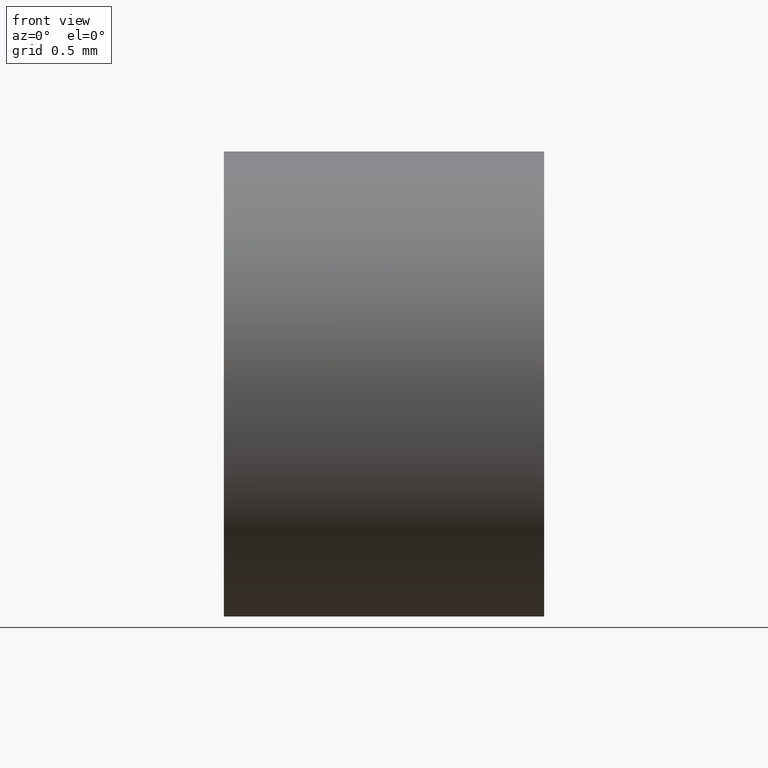
[diagram: clean part render]
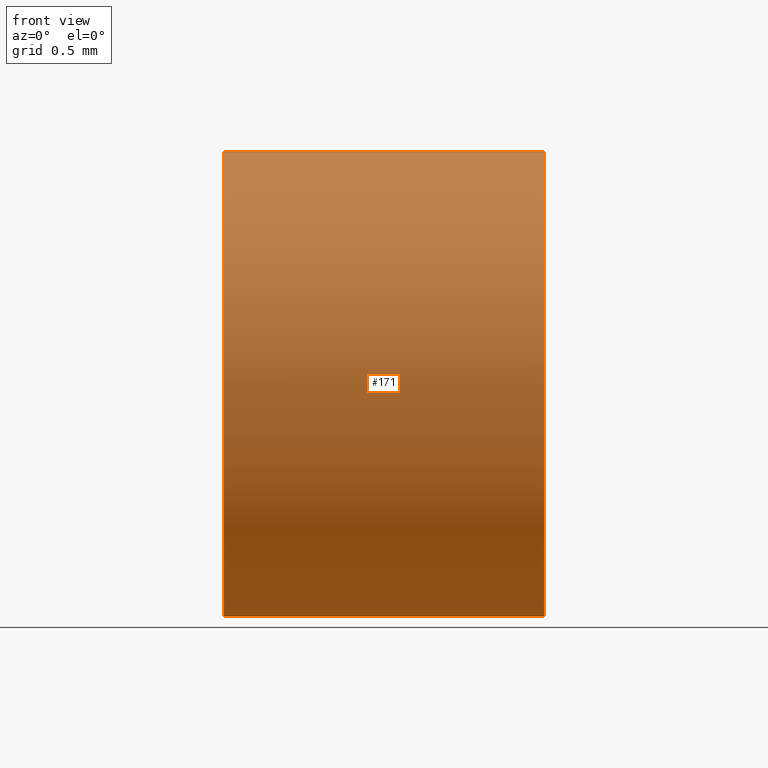
[diagram: same view with one face highlighted and labeled with its STEP entity id]
A machine part, front view. The second image highlights one B-rep face of the part: STEP entity #171.
In plain terms, the highlighted cylindrical surface (partial cylindrical patch) has radius 1 mm, axis along (-1, -0, -0).
Its self-contained STEP definition (entity closure, byte-faithful):
#2 = VERTEX_POINT ( 'NONE', #187 ) ;
#6 = DIRECTION ( 'NONE',  ( -1.000000000000000000, -0.0000000000000000000, -0.0000000000000000000 ) ) ;
#7 = ORIENTED_EDGE ( 'NONE', *, *, #191, .T. ) ;
#8 = CARTESIAN_POINT ( 'NONE',  ( 6.678613464750645400, 3.261130143649369800, 0.0000000000000000000 ) ) ;
#10 = DIRECTION ( 'NONE',  ( 0.0000000000000000000, 0.0000000000000000000, 1.000000000000000000 ) ) ;
#12 = ORIENTED_EDGE ( 'NONE', *, *, #208, .F. ) ;
#15 = AXIS2_PLACEMENT_3D ( 'NONE', #177, #147, #77 ) ;
#17 = VECTOR ( 'NONE', #169, 1000.000000000000000 ) ;
#19 = CARTESIAN_POINT ( 'NONE',  ( 6.678613464750645400, 2.261130143649369400, 0.0000000000000000000 ) ) ;
#25 = DIRECTION ( 'NONE',  ( -1.000000000000000000, -0.0000000000000000000, -0.0000000000000000000 ) ) ;
#37 = VERTEX_POINT ( 'NONE', #72 ) ;
#42 = DIRECTION ( 'NONE',  ( -1.000000000000000000, -0.0000000000000000000, -0.0000000000000000000 ) ) ;
#44 = EDGE_CURVE ( 'NONE', #37, #2, #206, .T. ) ;
#47 = CARTESIAN_POINT ( 'NONE',  ( 5.306232639267102900, 3.261130143649369800, 1.000000000000000400 ) ) ;
#55 = EDGE_CURVE ( 'NONE', #100, #184, #161, .T. ) ;
#58 = CARTESIAN_POINT ( 'NONE',  ( 6.678613464750645400, 3.261130143649369800, -1.000000000000001300 ) ) ;
#68 = LINE ( 'NONE', #47, #17 ) ;
#71 = ORIENTED_EDGE ( 'NONE', *, *, #228, .T. ) ;
#72 = CARTESIAN_POINT ( 'NONE',  ( 5.300613072747492700, 3.261130143649369800, -1.000000000000000400 ) ) ;
#77 = DIRECTION ( 'NONE',  ( 0.0000000000000000000, 0.0000000000000000000, 1.000000000000000000 ) ) ;
#82 = VERTEX_POINT ( 'NONE', #94 ) ;
#86 = CIRCLE ( 'NONE', #153, 1.000000000000000400 ) ;
#87 = VERTEX_POINT ( 'NONE', #58 ) ;
#90 = CARTESIAN_POINT ( 'NONE',  ( 5.300613072747492700, 3.261130143649369800, 0.0000000000000000000 ) ) ;
#94 = CARTESIAN_POINT ( 'NONE',  ( 5.300613072747492700, 3.261130143649369800, 1.000000000000000400 ) ) ;
#95 = ORIENTED_EDGE ( 'NONE', *, *, #44, .F. ) ;
#97 = CARTESIAN_POINT ( 'NONE',  ( 6.678613464750645400, 3.261130143649369800, 1.000000000000001300 ) ) ;
#100 = VERTEX_POINT ( 'NONE', #19 ) ;
#103 = DIRECTION ( 'NONE',  ( -1.000000000000000000, -0.0000000000000000000, -0.0000000000000000000 ) ) ;
#113 = DIRECTION ( 'NONE',  ( -1.000000000000000000, -0.0000000000000000000, -0.0000000000000000000 ) ) ;
#120 = EDGE_CURVE ( 'NONE', #87, #37, #155, .T. ) ;
#131 = AXIS2_PLACEMENT_3D ( 'NONE', #148, #42, #165 ) ;
#135 = AXIS2_PLACEMENT_3D ( 'NONE', #90, #103, #230 ) ;
#136 = CIRCLE ( 'NONE', #151, 1.000000000000001300 ) ;
#147 = DIRECTION ( 'NONE',  ( -1.000000000000000000, -0.0000000000000000000, -0.0000000000000000000 ) ) ;
#148 = CARTESIAN_POINT ( 'NONE',  ( 5.306232639267102900, 3.261130143649369800, 0.0000000000000000000 ) ) ;
#151 = AXIS2_PLACEMENT_3D ( 'NONE', #8, #25, #10 ) ;
#153 = AXIS2_PLACEMENT_3D ( 'NONE', #199, #113, #219 ) ;
#155 = LINE ( 'NONE', #216, #192 ) ;
#161 = CIRCLE ( 'NONE', #15, 1.000000000000001300 ) ;
#162 = FACE_OUTER_BOUND ( 'NONE', #172, .T. ) ;
#165 = DIRECTION ( 'NONE',  ( 0.0000000000000000000, 0.0000000000000000000, 1.000000000000000000 ) ) ;
#169 = DIRECTION ( 'NONE',  ( -1.000000000000000000, -0.0000000000000000000, -0.0000000000000000000 ) ) ;
#171 = ADVANCED_FACE ( 'NONE', ( #162 ), #202, .T. ) ;
#172 = EDGE_LOOP ( 'NONE', ( #188, #7, #209, #71, #12, #95 ) ) ;
#177 = CARTESIAN_POINT ( 'NONE',  ( 6.678613464750645400, 3.261130143649369800, 0.0000000000000000000 ) ) ;
#184 = VERTEX_POINT ( 'NONE', #97 ) ;
#187 = CARTESIAN_POINT ( 'NONE',  ( 5.300613072747492700, 2.261130143649370300, -1.224646799147353000E-016 ) ) ;
#188 = ORIENTED_EDGE ( 'NONE', *, *, #120, .F. ) ;
#191 = EDGE_CURVE ( 'NONE', #87, #100, #136, .T. ) ;
#192 = VECTOR ( 'NONE', #6, 1000.000000000000000 ) ;
#199 = CARTESIAN_POINT ( 'NONE',  ( 5.300613072747492700, 3.261130143649369800, 0.0000000000000000000 ) ) ;
#202 = CYLINDRICAL_SURFACE ( 'NONE', #131, 1.000000000000000400 ) ;
#206 = CIRCLE ( 'NONE', #135, 1.000000000000000400 ) ;
#208 = EDGE_CURVE ( 'NONE', #2, #82, #86, .T. ) ;
#209 = ORIENTED_EDGE ( 'NONE', *, *, #55, .T. ) ;
#216 = CARTESIAN_POINT ( 'NONE',  ( 5.306232639267102900, 3.261130143649369800, -1.000000000000000400 ) ) ;
#219 = DIRECTION ( 'NONE',  ( 0.0000000000000000000, 0.0000000000000000000, 1.000000000000000000 ) ) ;
#228 = EDGE_CURVE ( 'NONE', #184, #82, #68, .T. ) ;
#230 = DIRECTION ( 'NONE',  ( 0.0000000000000000000, 0.0000000000000000000, 1.000000000000000000 ) ) ;